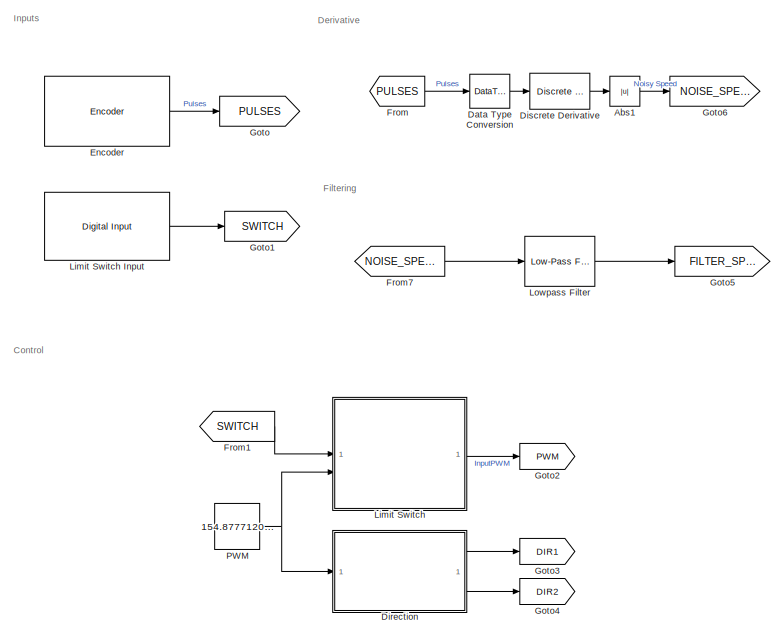
[diagram: root canvas - part 1/2, top center region]
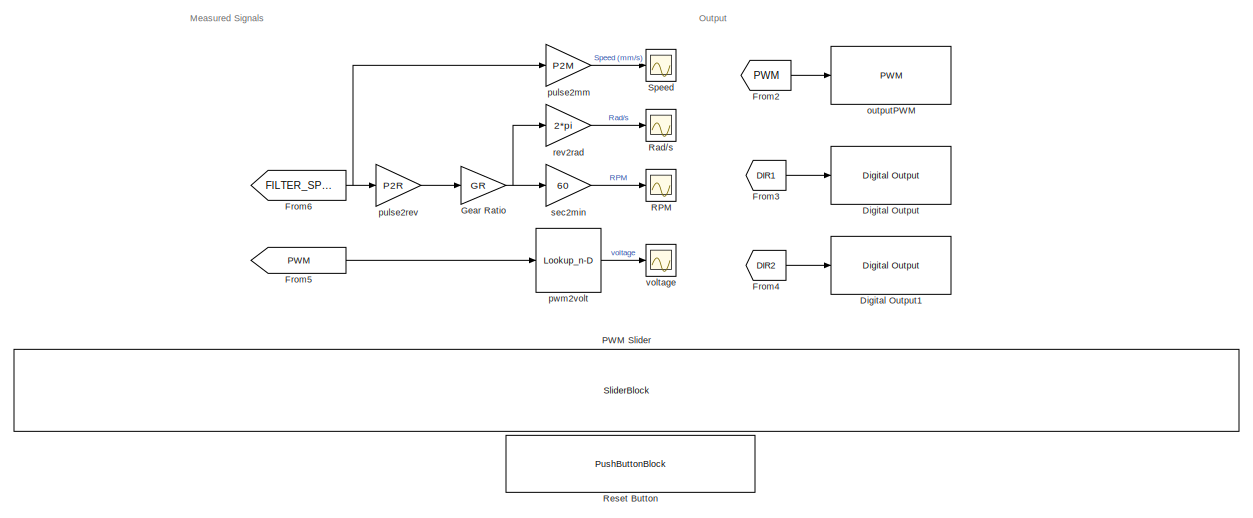
[diagram: root canvas - part 2/2, full width, bottom band]
MODEL slx_328a2a839982
KIND model
CONFIG AbsTol = auto
CONFIG EnableMultiTasking = on
CONFIG FixedStep = 5e-3
CONFIG MaxStep = auto
CONFIG MinStep = auto
CONFIG RelTol = 1e-3
CONFIG SampleTimeConstraint = Unconstrained
CONFIG SolverName = FixedStepAuto
CONFIG StartTime = 0.0
CONFIG StopTime = inf
BLOCK [Gain]  sec2min
  Gain = 60
  OutDataTypeStr = double
BLOCK [Abs] Abs1
  SaturateOnIntegerOverflow = off
BLOCK [DataTypeConversion] Data Type Conversion
  OutDataTypeStr = double
  RndMeth = Floor
  SaturateOnIntegerOverflow = off
BLOCK [Reference] Digital Output  REF=arduinolib/Digital Output
  SourceBlock = arduinolib/Digital Output
  SourceType = Arduino Digital Output
BLOCK [Reference] Digital Output1  REF=arduinolib/Digital Output
  SourceBlock = arduinolib/Digital Output
  SourceType = Arduino Digital Output
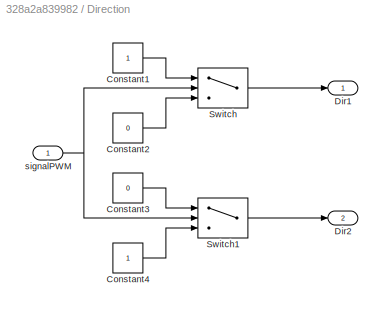
BLOCK [SubSystem] Direction
BLOCK [Constant] Direction/Constant1
BLOCK [Constant] Direction/Constant2
  Value = 0
BLOCK [Constant] Direction/Constant3
  Value = 0
BLOCK [Constant] Direction/Constant4
BLOCK [Outport] Direction/Dir1
BLOCK [Outport] Direction/Dir2
  Port = 2
BLOCK [Switch] Direction/Switch
  Criteria = u2 > Threshold
  InputSameDT = off
  SaturateOnIntegerOverflow = off
BLOCK [Switch] Direction/Switch1
  Criteria = u2 > Threshold
  InputSameDT = off
  SaturateOnIntegerOverflow = off
BLOCK [Inport] Direction/signalPWM
BLOCK [Reference] Discrete Derivative  REF=simulink/Discrete/Discrete Derivative
  SourceBlock = simulink/Discrete/Discrete Derivative
  SourceType = Discrete Derivative
BLOCK [Reference] Encoder  REF=arduinosensorlib/Encoder
  SourceBlock = arduinosensorlib/Encoder
  SourceType = Arduino Rotary Encoder
BLOCK [From] From
  GotoTag = PULSES
BLOCK [From] From1
  GotoTag = SWITCH
BLOCK [From] From2
  GotoTag = PWM
BLOCK [From] From3
  GotoTag = DIR1
BLOCK [From] From4
  GotoTag = DIR2
BLOCK [From] From5
  GotoTag = PWM
BLOCK [From] From6
  GotoTag = FILTER_SPEED
BLOCK [From] From7
  GotoTag = NOISE_SPEED
BLOCK [Gain] Gear Ratio
  Gain = GR
BLOCK [Goto] Goto
  GotoTag = PULSES
BLOCK [Goto] Goto1
  GotoTag = SWITCH
BLOCK [Goto] Goto2
  GotoTag = PWM
BLOCK [Goto] Goto3
  GotoTag = DIR1
BLOCK [Goto] Goto4
  GotoTag = DIR2
BLOCK [Goto] Goto5
  GotoTag = FILTER_SPEED
BLOCK [Goto] Goto6
  GotoTag = NOISE_SPEED
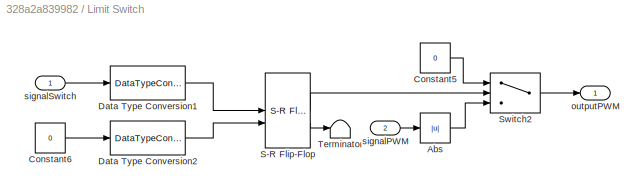
BLOCK [SubSystem] Limit Switch
BLOCK [Reference] Limit Switch Input  REF=arduinolib/Digital Input
  SourceBlock = arduinolib/Digital Input
  SourceType = Arduino Digital Input
BLOCK [Abs] Limit Switch/Abs
  SaturateOnIntegerOverflow = off
BLOCK [Constant] Limit Switch/Constant5
  Value = 0
BLOCK [Constant] Limit Switch/Constant6
  Value = 0
BLOCK [DataTypeConversion] Limit Switch/Data Type Conversion1
  OutDataTypeStr = boolean
  RndMeth = Floor
  SaturateOnIntegerOverflow = off
BLOCK [DataTypeConversion] Limit Switch/Data Type Conversion2
  OutDataTypeStr = boolean
  RndMeth = Floor
  SaturateOnIntegerOverflow = off
BLOCK [Reference] Limit Switch/S-R Flip-Flop  REF=simulink_extras/Flip Flops/S-R
Flip-Flop
  SourceBlock = simulink_extras/Flip Flops/S-R\nFlip-Flop
  SourceType = SRFlipFlop
BLOCK [Switch] Limit Switch/Switch2
  Criteria = u2 > Threshold
  InputSameDT = off
  SaturateOnIntegerOverflow = off
BLOCK [Terminator] Limit Switch/Terminator
BLOCK [Outport] Limit Switch/outputPWM
BLOCK [Inport] Limit Switch/signalPWM
  Port = 2
BLOCK [Inport] Limit Switch/signalSwitch
BLOCK [Reference] Lowpass Filter  REF=eeGeneralControl/Low-Pass Filter
(Discrete or Continuous)
  LibrarySourceBlock = ee_sl_lib/General Control/Low-Pass Filter\n(Discrete or Continuous)
  SourceBlock = eeGeneralControl/Low-Pass Filter\n(Discrete or Continuous)
  SourceType = Low-Pass Filter (Discrete or Continuous)
BLOCK [Constant] PWM
  OutDataTypeStr = int16
  Value = 154.8777120315582
BLOCK [SliderBlock] PWM Slider
  ScaleMax = 255
  ScaleMin = -255
BLOCK [Scope] RPM
  Floating = off
  NumInputPorts = 1
  ScopeSpecificationString = Simulink.scopes.TimeScopeBlockCfg('CurrentConfiguration', extmgr.ConfigurationSet(extmgr.Configuration('Core','General UI',true),extmgr.Configuration('Core','Source UI',true),extmgr.Configuration('Sources','WiredSimulink',true,'DataLoggingVariableName','ScopeData1'),extmgr.Configuration('Visuals','Time Domain',true,'SerializedDisplays',{struct('MinYLimReal','-1.00000','MaxYLimReal','1.00000','YLab...<+1505ch>
BLOCK [Scope] Rad//s
  Floating = off
  NumInputPorts = 1
  ScopeSpecificationString = Simulink.scopes.TimeScopeBlockCfg('CurrentConfiguration', extmgr.ConfigurationSet(extmgr.Configuration('Core','General UI',true),extmgr.Configuration('Core','Source UI',true),extmgr.Configuration('Sources','WiredSimulink',true,'DataLoggingVariableName','ScopeData2'),extmgr.Configuration('Visuals','Time Domain',true,'SerializedDisplays',{struct('MinYLimReal','-1.00000','MaxYLimReal','1.00000','YLab...<+1507ch>
BLOCK [PushButtonBlock] Reset Button
  ButtonText = Reset
  OffValue = 0.000000
BLOCK [Scope] Speed
  Floating = off
  NumInputPorts = 1
  ScopeSpecificationString = Simulink.scopes.TimeScopeBlockCfg('CurrentConfiguration', extmgr.ConfigurationSet(extmgr.Configuration('Core','General UI',true),extmgr.Configuration('Core','Source UI',true),extmgr.Configuration('Sources','WiredSimulink',true,'DataLoggingVariableName','ScopeData1'),extmgr.Configuration('Visuals','Time Domain',true),extmgr.Configuration('Tools','Plot Navigation',true),extmgr.Configuration('Tools',...<+40ch>
BLOCK [Reference] outputPWM  REF=arduinolib/PWM
  SourceBlock = arduinolib/PWM
  SourceType = Arduino PWM
BLOCK [Gain] pulse2mm
  Gain = P2M
BLOCK [Gain] pulse2rev
  Gain = P2R
BLOCK [Lookup_n-D] pwm2volt
  BreakpointsForDimension1 = [0 5 10 15 20 25 30 35 40 45 50 55 60 65 70 75 80 85 90 95 100 105 110 115 120 125 130 135 140 145 150 155 160 165 170 175 180 185 190 195 200 205 210 215 220 225 230 235 240 245 250 255]
  InputPortMap = u0
  InternalRulePriority = Speed
  NumberOfTableDimensions = 1
  RndMeth = Simplest
  Table = [0;0;0;0;0;0;0;0;2.5;3.08;3.77;4.54;5.08;5.55;6.05;6.5;6.97;7.23;7.51;7.72;7.9;8.09;8.28;8.4;8.56;8.65;8.87;9.07;9.27;9.33;9.45;9.51;9.59;9.66;9.74;9.82;9.89;9.91;9.96;10.04;10.08;10.11;10.14;10.2;10.26;10.31;10.37;10.43;10.47;10.47;10.52;10.74]
BLOCK [Gain] rev2rad
  Gain = 2*pi
BLOCK [Scope] voltage
  Floating = off
  NumInputPorts = 1
  ScopeSpecificationString = Simulink.scopes.TimeScopeBlockCfg('CurrentConfiguration', extmgr.ConfigurationSet(extmgr.Configuration('Core','General UI',true),extmgr.Configuration('Core','Source UI',true),extmgr.Configuration('Sources','WiredSimulink',true,'DataLoggingVariableName','ScopeData2'),extmgr.Configuration('Visuals','Time Domain',true),extmgr.Configuration('Tools','Plot Navigation',true),extmgr.Configuration('Tools',...<+40ch>
ANNOTATION (root): Control
ANNOTATION (root): Derivative
ANNOTATION (root): Filtering
ANNOTATION (root): Inputs
ANNOTATION (root): Measured Signals
ANNOTATION (root): Output
LINE  sec2min:1 -> RPM:1
LINE Abs1:1 -> Goto6:1
LINE Data Type Conversion:1 -> Discrete Derivative:1
LINE Direction/Constant1:1 -> Direction/Switch:1
LINE Direction/Constant2:1 -> Direction/Switch:3
LINE Direction/Constant3:1 -> Direction/Switch1:1
LINE Direction/Constant4:1 -> Direction/Switch1:3
LINE Direction/Switch1:1 -> Direction/Dir2:1
LINE Direction/Switch:1 -> Direction/Dir1:1
NET Direction/signalPWM:1 -> Direction/Switch1:2, Direction/Switch:2
LINE Direction:1 -> Goto3:1
LINE Direction:2 -> Goto4:1
LINE Discrete Derivative:1 -> Abs1:1
LINE Encoder:1 -> Goto:1
LINE From1:1 -> Limit Switch:1
LINE From2:1 -> outputPWM:1
LINE From3:1 -> Digital Output:1
LINE From4:1 -> Digital Output1:1
LINE From5:1 -> pwm2volt:1
NET From6:1 -> pulse2mm:1, pulse2rev:1
LINE From7:1 -> Lowpass Filter:1
LINE From:1 -> Data Type Conversion:1
NET Gear Ratio:1 ->  sec2min:1, rev2rad:1
LINE Limit Switch Input:1 -> Goto1:1
LINE Limit Switch/Abs:1 -> Limit Switch/Switch2:3
LINE Limit Switch/Constant5:1 -> Limit Switch/Switch2:1
LINE Limit Switch/Constant6:1 -> Limit Switch/Data Type Conversion2:1
LINE Limit Switch/Data Type Conversion1:1 -> Limit Switch/S-R Flip-Flop:1
LINE Limit Switch/Data Type Conversion2:1 -> Limit Switch/S-R Flip-Flop:2
LINE Limit Switch/S-R Flip-Flop:1 -> Limit Switch/Switch2:2
LINE Limit Switch/S-R Flip-Flop:2 -> Limit Switch/Terminator:1
LINE Limit Switch/Switch2:1 -> Limit Switch/outputPWM:1
LINE Limit Switch/signalPWM:1 -> Limit Switch/Abs:1
LINE Limit Switch/signalSwitch:1 -> Limit Switch/Data Type Conversion1:1
LINE Limit Switch:1 -> Goto2:1
LINE Lowpass Filter:1 -> Goto5:1
NET PWM:1 -> Direction:1, Limit Switch:2
LINE pulse2mm:1 -> Speed:1
LINE pulse2rev:1 -> Gear Ratio:1
LINE pwm2volt:1 -> voltage:1
LINE rev2rad:1 -> Rad//s:1
note: NET lines group one-source signal fan-out (src -> all destinations, sorted); 1:1 wires keep LINE
